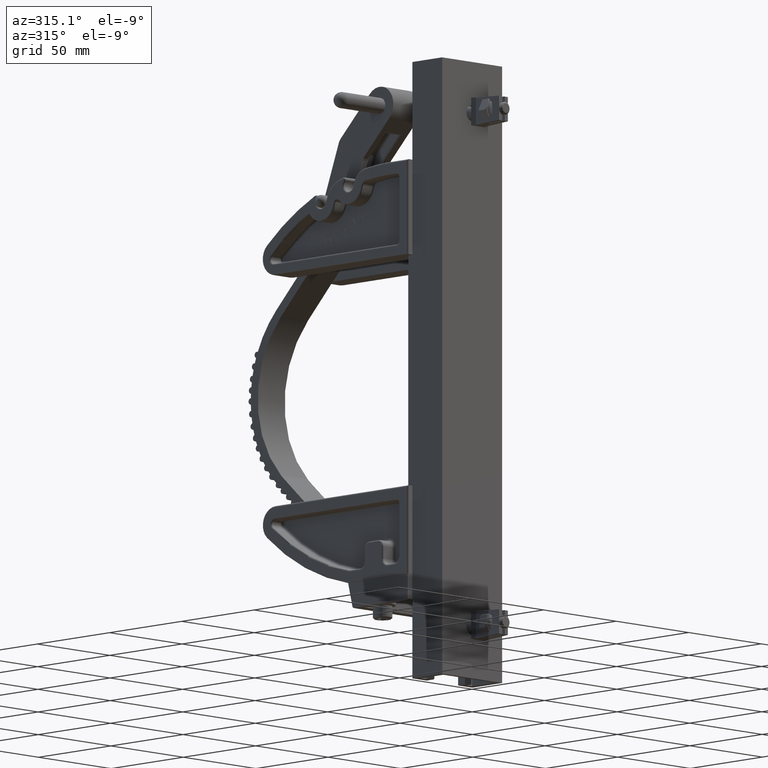
[diagram: clean part render]
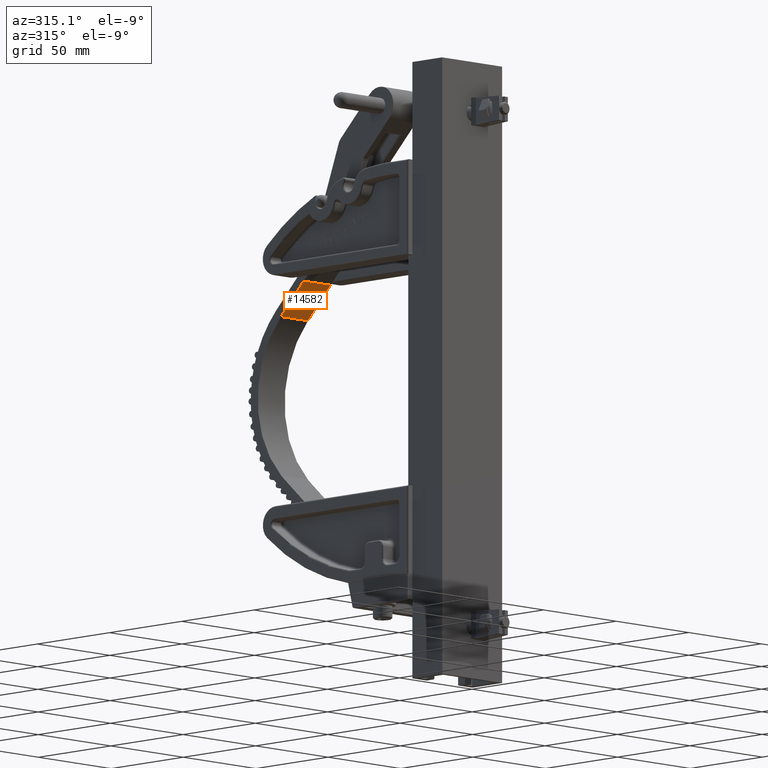
[diagram: same view with one face highlighted and labeled with its STEP entity id]
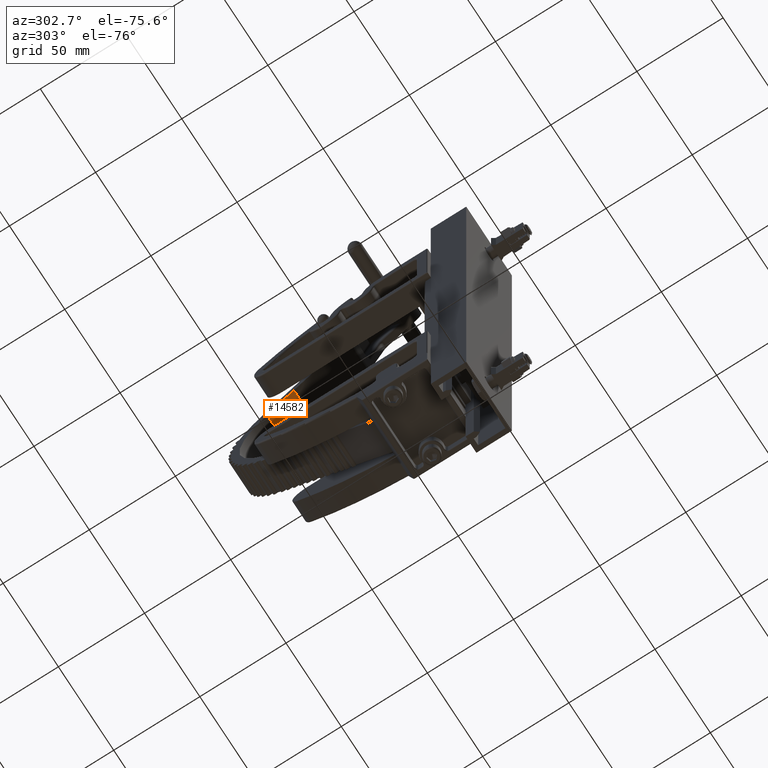
[diagram: same view with one face highlighted and labeled with its STEP entity id]
A machine part, auxiliary view. The second image highlights one B-rep face of the part: STEP entity #14582.
A second angle (auxiliary view) of the same face is appended — the face is thin or edge-on in the first view.
In plain terms, the highlighted planar face has unit normal (0, 0.7114, 0.7028).
Its self-contained STEP definition (entity closure, byte-faithful):
#609 = FACE_OUTER_BOUND ( 'NONE', #16709, .T. ) ;
#1330 = DIRECTION ( 'NONE',  ( -0.9998974232479455000, -0.01432281334510926100, 1.232595164407830500E-032 ) ) ;
#2738 = CARTESIAN_POINT ( 'NONE',  ( -3.703076168339255200, -0.8124999999999985600, 0.3649999999999999900 ) ) ;
#4907 = DIRECTION ( 'NONE',  ( 3.081487911019577400E-032, -4.930380657631323800E-032, -1.000000000000000000 ) ) ;
#7004 = CARTESIAN_POINT ( 'NONE',  ( -3.703076168339255200, -0.8124999999999985600, -0.3649999999999999900 ) ) ;
#7287 = LINE ( 'NONE', #19095, #36362 ) ;
#9748 = VERTEX_POINT ( 'NONE', #28609 ) ;
#10451 = VECTOR ( 'NONE', #15247, 39.37007874015748900 ) ;
#11481 = VERTEX_POINT ( 'NONE', #18880 ) ;
#11795 = CARTESIAN_POINT ( 'NONE',  ( -4.577124647166994200, -0.8250201174898131900, -0.3649999999999999900 ) ) ;
#12090 = VECTOR ( 'NONE', #19765, 39.37007874015748100 ) ;
#13371 = VERTEX_POINT ( 'NONE', #11795 ) ;
#14176 = ORIENTED_EDGE ( 'NONE', *, *, #16550, .F. ) ;
#14582 = ADVANCED_FACE ( 'NONE', ( #609 ), #15505, .F. ) ;
#15247 = DIRECTION ( 'NONE',  ( 0.9998974232479455000, 0.01432281334510931600, -3.697785493223492300E-032 ) ) ;
#15505 = PLANE ( 'NONE',  #18984 ) ;
#16550 = EDGE_CURVE ( 'NONE', #11481, #23820, #20558, .T. ) ;
#16709 = EDGE_LOOP ( 'NONE', ( #31707, #14176, #18242, #28169 ) ) ;
#18037 = LINE ( 'NONE', #26475, #10451 ) ;
#18242 = ORIENTED_EDGE ( 'NONE', *, *, #30727, .F. ) ;
#18369 = DIRECTION ( 'NONE',  ( -0.01432281334510926300, 0.9998974232479456200, 7.395570986446986800E-032 ) ) ;
#18880 = CARTESIAN_POINT ( 'NONE',  ( -3.703076168339255200, -0.8124999999999985600, 0.3649999999999999900 ) ) ;
#18984 = AXIS2_PLACEMENT_3D ( 'NONE', #35137, #18369, #1330 ) ;
#19095 = CARTESIAN_POINT ( 'NONE',  ( -4.577124647166994200, -0.8250201174898131900, 0.3649999999999999900 ) ) ;
#19126 = EDGE_CURVE ( 'NONE', #9748, #13371, #7287, .T. ) ;
#19765 = DIRECTION ( 'NONE',  ( 3.081487911019577400E-032, -4.930380657631323800E-032, -1.000000000000000000 ) ) ;
#20558 = LINE ( 'NONE', #2738, #12090 ) ;
#21141 = DIRECTION ( 'NONE',  ( 0.9998974232479455000, 0.01432281334510931600, -3.697785493223492300E-032 ) ) ;
#22466 = LINE ( 'NONE', #7004, #36441 ) ;
#23820 = VERTEX_POINT ( 'NONE', #33925 ) ;
#26475 = CARTESIAN_POINT ( 'NONE',  ( -3.703076168339255200, -0.8124999999999985600, 0.3649999999999999900 ) ) ;
#28169 = ORIENTED_EDGE ( 'NONE', *, *, #19126, .T. ) ;
#28609 = CARTESIAN_POINT ( 'NONE',  ( -4.577124647166994200, -0.8250201174898131900, 0.3649999999999999900 ) ) ;
#30727 = EDGE_CURVE ( 'NONE', #9748, #11481, #18037, .T. ) ;
#31533 = EDGE_CURVE ( 'NONE', #13371, #23820, #22466, .T. ) ;
#31707 = ORIENTED_EDGE ( 'NONE', *, *, #31533, .T. ) ;
#33925 = CARTESIAN_POINT ( 'NONE',  ( -3.703076168339255200, -0.8124999999999985600, -0.3649999999999999900 ) ) ;
#35137 = CARTESIAN_POINT ( 'NONE',  ( -3.703076168339255200, -0.8124999999999985600, 0.3649999999999999900 ) ) ;
#36362 = VECTOR ( 'NONE', #4907, 39.37007874015748100 ) ;
#36441 = VECTOR ( 'NONE', #21141, 39.37007874015748900 ) ;